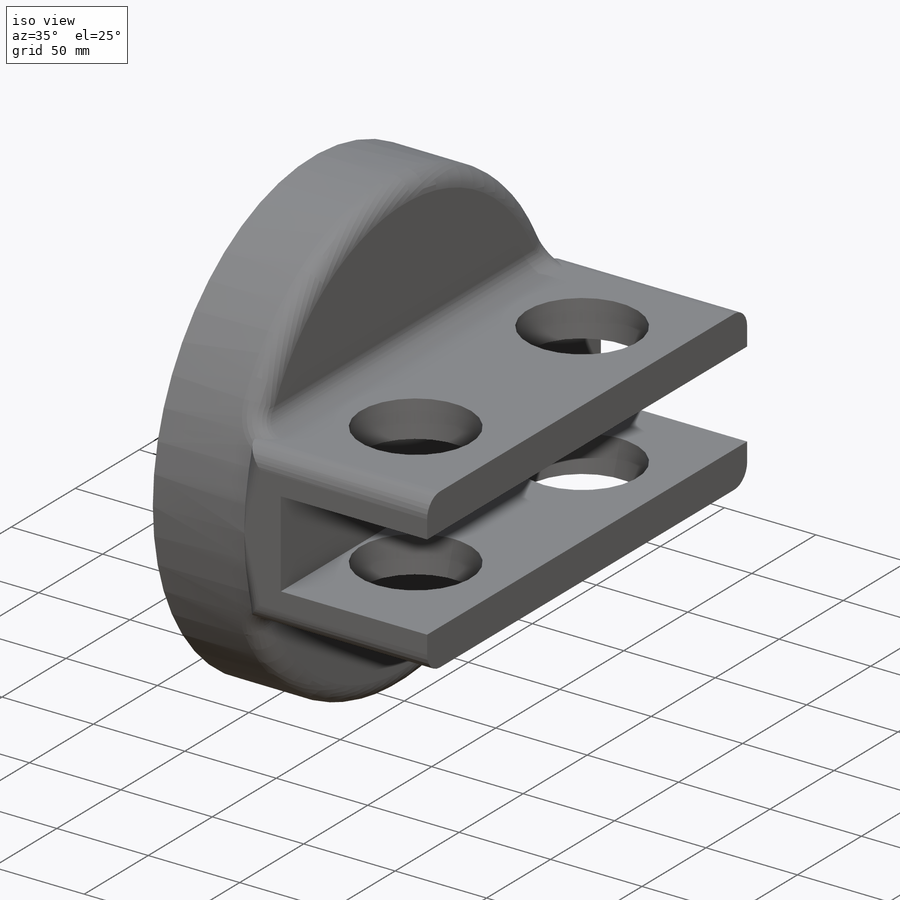
[diagram: iso view]
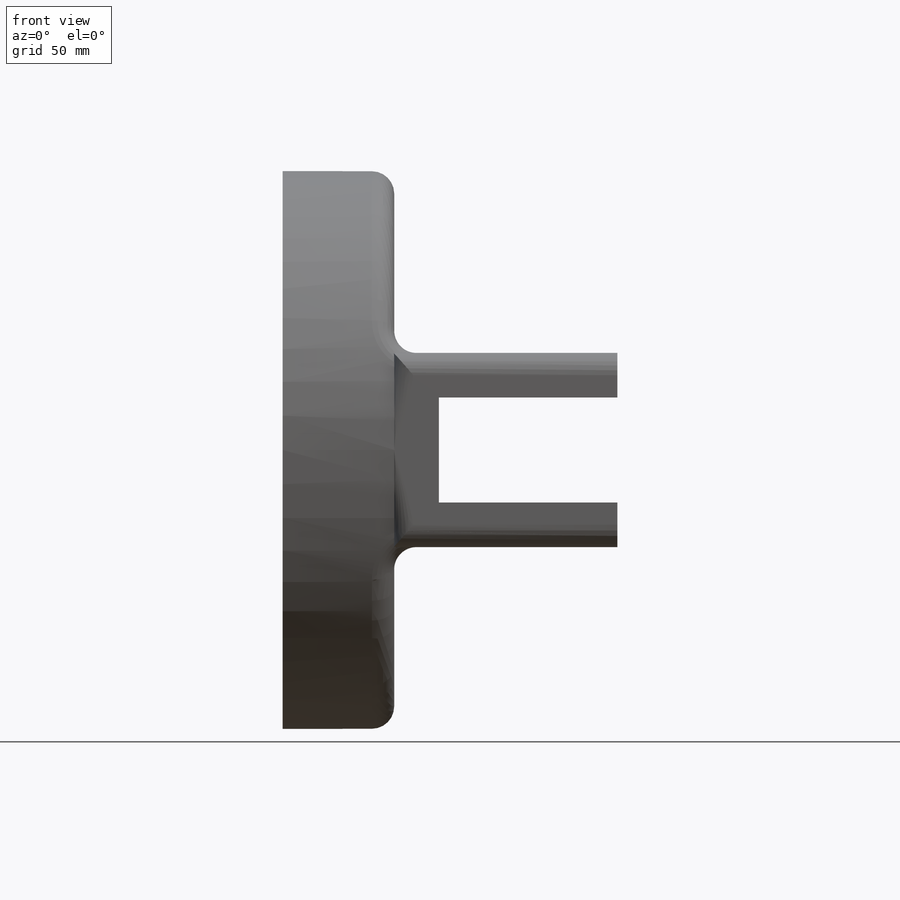
[diagram: front view]
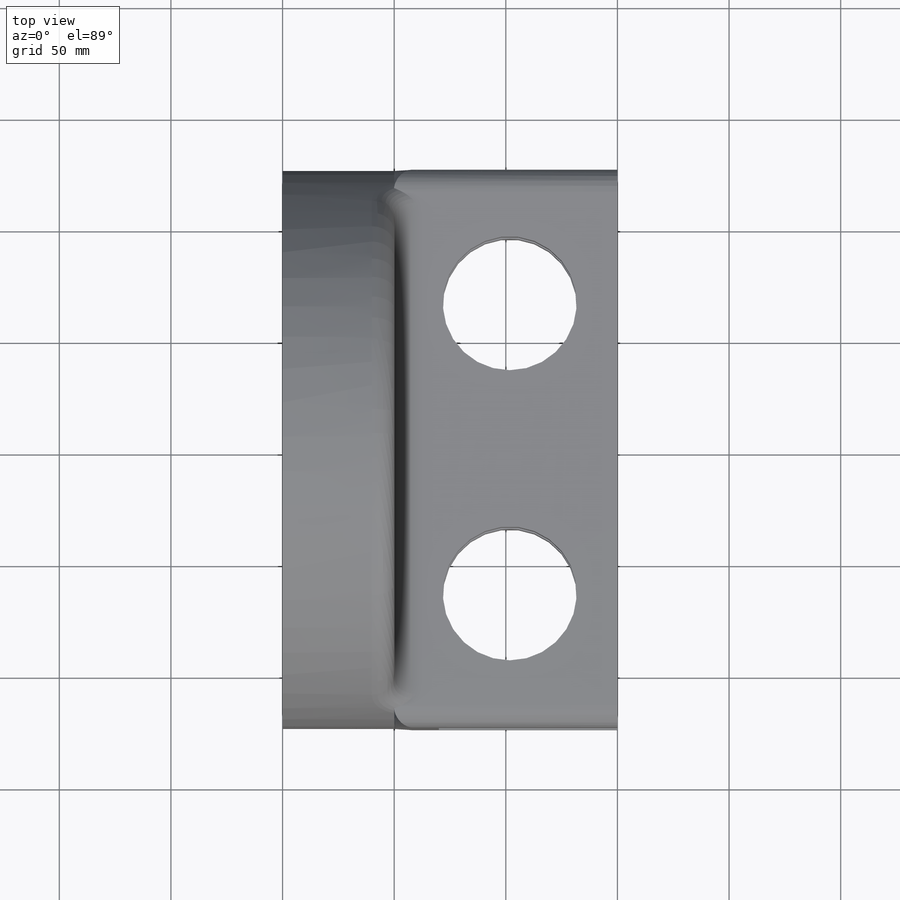
[diagram: top view]
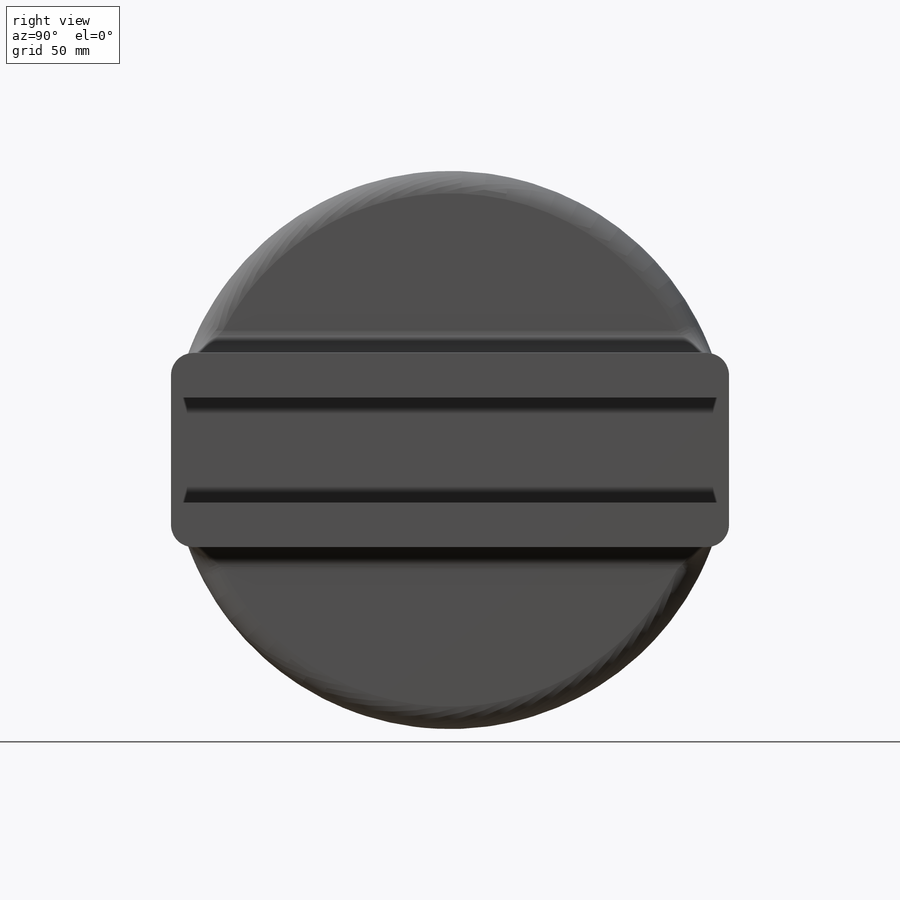
[diagram: right view]
SOLIDWORKS PART (.sldprt)
format: sldprt  version: not decoded by parser v0  size: 321,536 bytes
history: native  units: mm
features: sketch x5, fillet x4, cut_extrude x3, extrude x2, material x1 (+13 scaffold rows collapsed)
feature tree (28):
  scaffold x13  (default folders/planes/origin — collapsed)
  material  "Material <not specified>"
  sketch  "Sketch1"  dims[D1=250.0mm]
  extrude  "Boss-Extrude1"  Depth=50mm
  sketch  "Sketch2"  dims[D1=120.0mm]
  cut_extrude  "Cut-Extrude1"  Depth=19.9mm
  sketch  "Sketch3"
  extrude  "Boss-Extrude2"  Depth=100mm
  fillet  "Fillet1"  Radius=10mm
  sketch  "Sketch4"  dims[D1=20.0mm]
  cut_extrude  "Cut-Extrude2"  Depth=80mm
  fillet  "Fillet2"  Radius=10mm
  fillet  "Fillet3"  Radius=10mm
  fillet  "Fillet4"  Radius=10mm
  sketch  "Sketch5"  dims[D1=60.0mm D2=50.0mm D3=50.0mm D4=130.0mm]
  cut_extrude  "Cut-Extrude3"  [1 undecoded]
decode coverage: 12 of 14 modeling features carry decoded parameters
note: 1 parameter value undecoded
note: suppression state not decoded; provenance and decode notes live in map.json
